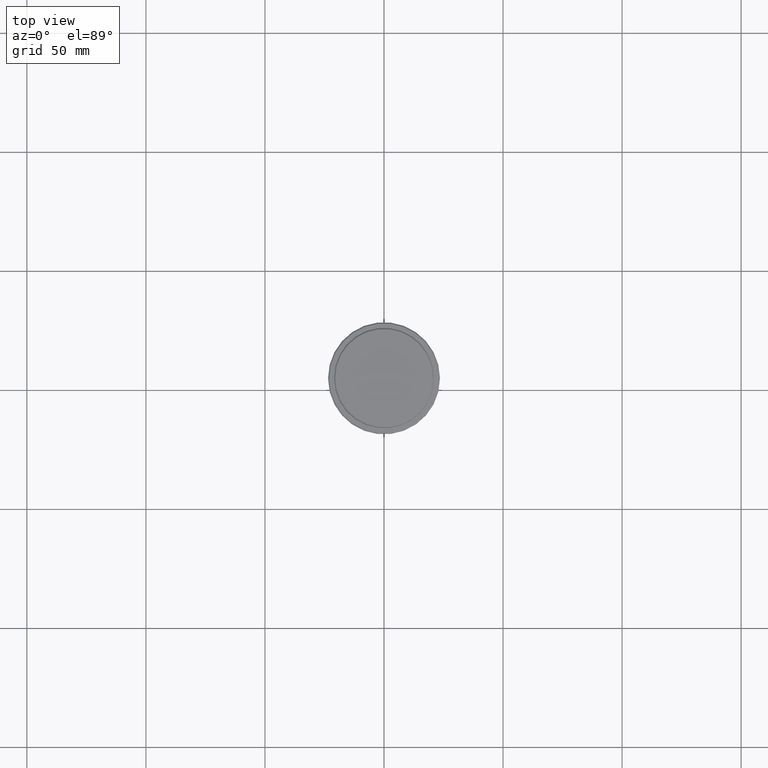
[diagram: clean part render]
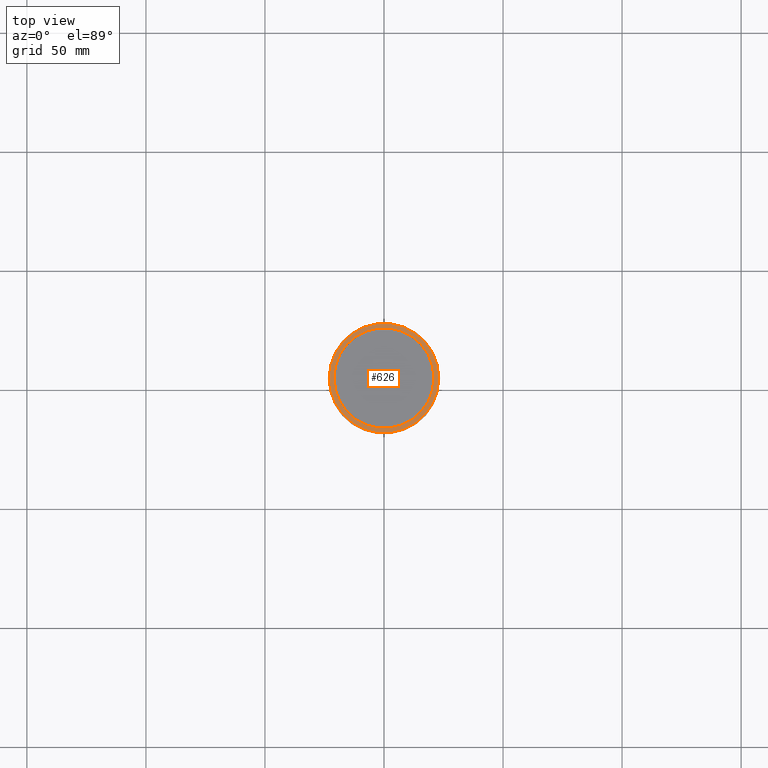
[diagram: same view with one face highlighted and labeled with its STEP entity id]
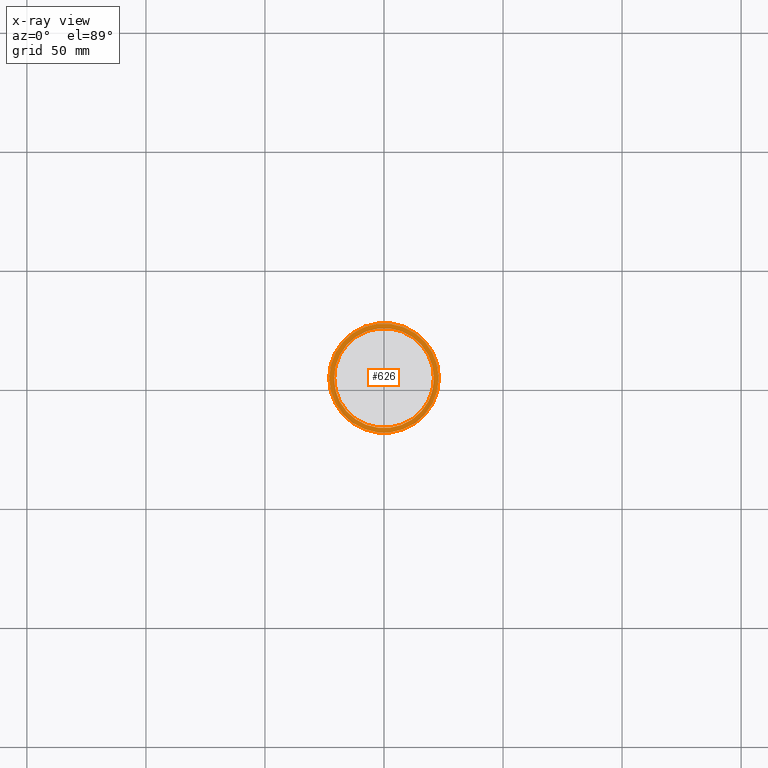
[diagram: x-ray of the same camera — body ghosted, the highlighted face saturated]
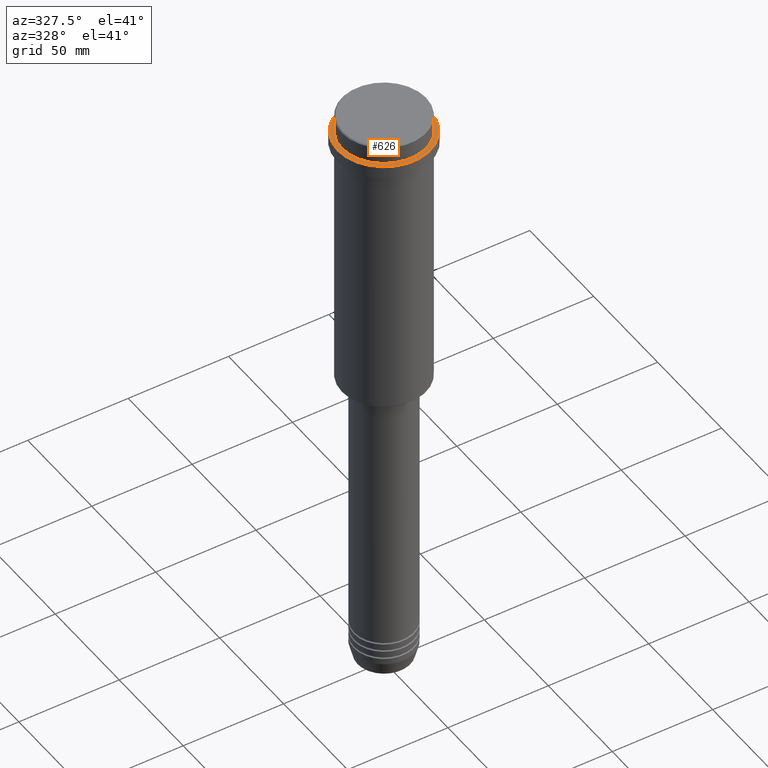
[diagram: same view with one face highlighted and labeled with its STEP entity id]
A machine part, top view. The second image highlights one B-rep face of the part: STEP entity #626.
The next image is the same camera in x-ray: the body ghosted, the highlighted face saturated — about 0% of this face is hidden behind the body in this view.
A second angle (auxiliary view) of the same face is appended — the face is thin or edge-on in the first view.
In plain terms, the highlighted planar face has unit normal (0, -0, 1).
Its self-contained STEP definition (entity closure, byte-faithful):
#17 = AXIS2_PLACEMENT_3D ( 'NONE', #816, #154, #1035 ) ;
#34 = EDGE_LOOP ( 'NONE', ( #483, #905 ) ) ;
#56 = DIRECTION ( 'NONE',  ( 0.000000000000000000, -0.000000000000000000, 1.000000000000000000 ) ) ;
#85 = CARTESIAN_POINT ( 'NONE',  ( 20.99999999999999289, 0.000000000000000000, -9.000000000000000000 ) ) ;
#93 = CARTESIAN_POINT ( 'NONE',  ( -20.99999999999999289, 2.571758278209440872E-15, -9.000000000000000000 ) ) ;
#121 = CARTESIAN_POINT ( 'NONE',  ( 0.000000000000000000, 0.000000000000000000, -9.000000000000000000 ) ) ;
#153 = CARTESIAN_POINT ( 'NONE',  ( 0.000000000000000000, 0.000000000000000000, -9.000000000000000000 ) ) ;
#154 = DIRECTION ( 'NONE',  ( -0.000000000000000000, -0.000000000000000000, 1.000000000000000000 ) ) ;
#193 = EDGE_LOOP ( 'NONE', ( #593, #431 ) ) ;
#221 = EDGE_CURVE ( 'NONE', #813, #1366, #711, .T. ) ;
#228 = CARTESIAN_POINT ( 'NONE',  ( -23.00000000000005329, 0.000000000000000000, -9.000000000000000000 ) ) ;
#271 = PLANE ( 'NONE',  #1291 ) ;
#310 = CARTESIAN_POINT ( 'NONE',  ( 23.00000000000005329, 2.847303808017599689E-15, -9.000000000000000000 ) ) ;
#318 = CARTESIAN_POINT ( 'NONE',  ( 0.000000000000000000, 0.000000000000000000, -9.000000000000000000 ) ) ;
#360 = DIRECTION ( 'NONE',  ( 0.000000000000000000, 0.000000000000000000, -1.000000000000000000 ) ) ;
#431 = ORIENTED_EDGE ( 'NONE', *, *, #221, .T. ) ;
#483 = ORIENTED_EDGE ( 'NONE', *, *, #583, .T. ) ;
#504 = AXIS2_PLACEMENT_3D ( 'NONE', #318, #844, #981 ) ;
#551 = AXIS2_PLACEMENT_3D ( 'NONE', #121, #791, #994 ) ;
#583 = EDGE_CURVE ( 'NONE', #707, #762, #1113, .T. ) ;
#589 = CARTESIAN_POINT ( 'NONE',  ( 0.000000000000000000, 20.49999999999999645, -9.000000000000000000 ) ) ;
#593 = ORIENTED_EDGE ( 'NONE', *, *, #766, .T. ) ;
#626 = ADVANCED_FACE ( 'NONE', ( #808, #822 ), #271, .T. ) ;
#707 = VERTEX_POINT ( 'NONE', #85 ) ;
#711 = CIRCLE ( 'NONE', #17, 23.00000000000005329 ) ;
#762 = VERTEX_POINT ( 'NONE', #93 ) ;
#766 = EDGE_CURVE ( 'NONE', #1366, #813, #1053, .T. ) ;
#791 = DIRECTION ( 'NONE',  ( 0.000000000000000000, 0.000000000000000000, -1.000000000000000000 ) ) ;
#808 = FACE_OUTER_BOUND ( 'NONE', #193, .T. ) ;
#813 = VERTEX_POINT ( 'NONE', #310 ) ;
#816 = CARTESIAN_POINT ( 'NONE',  ( 0.000000000000000000, 0.000000000000000000, -9.000000000000000000 ) ) ;
#822 = FACE_BOUND ( 'NONE', #34, .T. ) ;
#844 = DIRECTION ( 'NONE',  ( -0.000000000000000000, -0.000000000000000000, 1.000000000000000000 ) ) ;
#856 = EDGE_CURVE ( 'NONE', #762, #707, #1162, .T. ) ;
#905 = ORIENTED_EDGE ( 'NONE', *, *, #856, .T. ) ;
#981 = DIRECTION ( 'NONE',  ( 1.000000000000000000, 0.000000000000000000, 0.000000000000000000 ) ) ;
#994 = DIRECTION ( 'NONE',  ( 1.000000000000000000, 0.000000000000000000, 0.000000000000000000 ) ) ;
#1035 = DIRECTION ( 'NONE',  ( 1.000000000000000000, 0.000000000000000000, 0.000000000000000000 ) ) ;
#1040 = DIRECTION ( 'NONE',  ( 1.000000000000000000, 0.000000000000000000, 0.000000000000000000 ) ) ;
#1053 = CIRCLE ( 'NONE', #504, 23.00000000000005329 ) ;
#1113 = CIRCLE ( 'NONE', #1137, 20.99999999999999289 ) ;
#1137 = AXIS2_PLACEMENT_3D ( 'NONE', #153, #360, #1040 ) ;
#1162 = CIRCLE ( 'NONE', #551, 20.99999999999999289 ) ;
#1291 = AXIS2_PLACEMENT_3D ( 'NONE', #589, #56, #1344 ) ;
#1344 = DIRECTION ( 'NONE',  ( 1.000000000000000000, 0.000000000000000000, 0.000000000000000000 ) ) ;
#1366 = VERTEX_POINT ( 'NONE', #228 ) ;